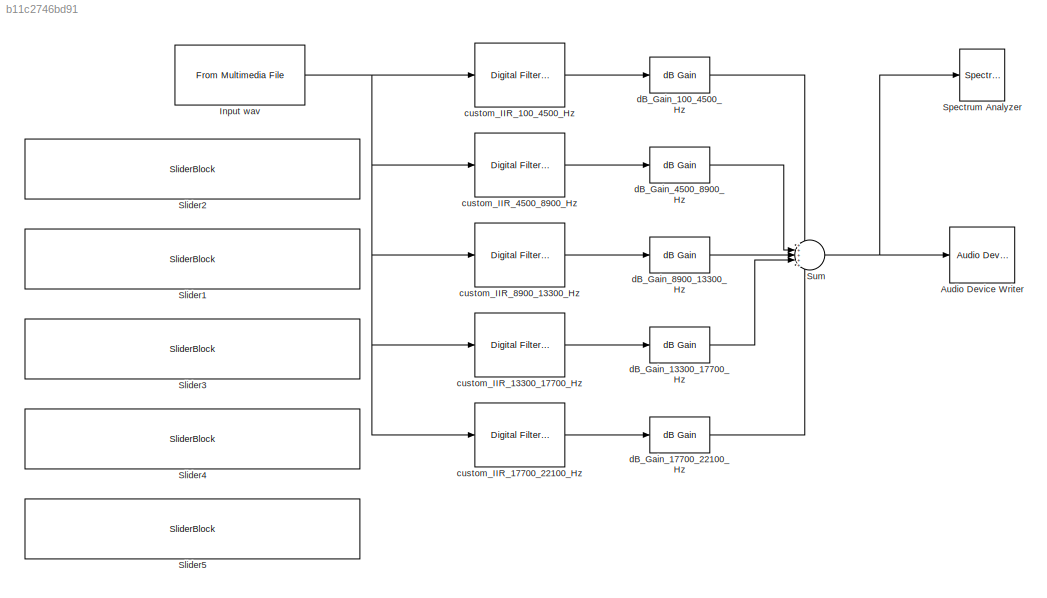
MODEL slx_b11c2746bd91
KIND model
CONFIG AbsTol = auto
CONFIG EnableMultiTasking = off
CONFIG FixedStep = auto
CONFIG MaxStep = auto
CONFIG MinStep = auto
CONFIG RelTol = 1e-3
CONFIG SampleTimeConstraint = Unconstrained
CONFIG Solver = VariableStepAuto
CONFIG SolverName = VariableStepAuto
CONFIG StartTime = 0.0
CONFIG StopTime = 10.0
BLOCK [Reference] Audio Device Writer  REF=dspsnks4/Audio Device
Writer
  Ports = [1]
  SourceBlock = dspsnks4/Audio Device\nWriter
  SourceProductBaseCode = DS
  SourceProductName = DSP System Toolbox
  SourceType = Audio Device Writer
BLOCK [Reference] Input wav  REF=dspvision/From Multimedia File
  Ports = [0, 1]
  SourceBlock = dspvision/From Multimedia File
  SourceProductBaseCode = DS
  SourceProductName = DSP System Toolbox
  SourceType = From Multimedia File
BLOCK [SliderBlock] Slider1
  ScaleMin = -100
BLOCK [SliderBlock] Slider2
  ScaleMin = -100
BLOCK [SliderBlock] Slider3
  ScaleMin = -100
BLOCK [SliderBlock] Slider4
  ScaleMin = -100
BLOCK [SliderBlock] Slider5
  ScaleMin = -100
BLOCK [SpectrumAnalyzer] Spectrum Analyzer
  Ports = [1]
  ScopeSpecificationString = spbscopes.SpectrumAnalyzerBlockCfg('CurrentConfiguration', extmgr.ConfigurationSet(extmgr.Configuration('Core','General UI',true),extmgr.Configuration('Core','Source UI',true),extmgr.Configuration('Sources','WiredSimulink',true),extmgr.Configuration('Visuals','Spectrum',true,'AxesProperties',struct('Color',{[0 0 0],[0 0 0]},'XColor',{[0.686274509803922 0.686274509803922 0.686274509803922],[0.68627...<+1953ch>
BLOCK [Sum] Sum
  IconShape = round
  InputSameDT = off
  Inputs = +++++
  OutDataTypeStr = Inherit: Inherit via internal rule
  Ports = [5, 1]
  SaturateOnIntegerOverflow = off
BLOCK [Reference] custom_IIR_100_4500_Hz  REF=dsparch4/Digital
Filter Design
  Ports = [1, 1]
  SourceBlock = dsparch4/Digital\nFilter Design
  SourceProductBaseCode = DS
  SourceProductName = DSP System Toolbox
  SourceType = Digital Filter Design
  UserDataPersistent = on
BLOCK [Reference] custom_IIR_13300_17700_Hz  REF=dsparch4/Digital
Filter Design
  Ports = [1, 1]
  SourceBlock = dsparch4/Digital\nFilter Design
  SourceProductBaseCode = DS
  SourceProductName = DSP System Toolbox
  SourceType = Digital Filter Design
  UserDataPersistent = on
BLOCK [Reference] custom_IIR_17700_22100_Hz  REF=dsparch4/Digital
Filter Design
  Ports = [1, 1]
  SourceBlock = dsparch4/Digital\nFilter Design
  SourceProductBaseCode = DS
  SourceProductName = DSP System Toolbox
  SourceType = Digital Filter Design
  UserDataPersistent = on
BLOCK [Reference] custom_IIR_4500_8900_Hz  REF=dsparch4/Digital
Filter Design
  Ports = [1, 1]
  SourceBlock = dsparch4/Digital\nFilter Design
  SourceProductBaseCode = DS
  SourceProductName = DSP System Toolbox
  SourceType = Digital Filter Design
  UserDataPersistent = on
BLOCK [Reference] custom_IIR_8900_13300_Hz  REF=dsparch4/Digital
Filter Design
  Ports = [1, 1]
  SourceBlock = dsparch4/Digital\nFilter Design
  SourceProductBaseCode = DS
  SourceProductName = DSP System Toolbox
  SourceType = Digital Filter Design
  UserDataPersistent = on
BLOCK [Reference] dB_Gain_100_4500_Hz  REF=dspmathops/dB Gain
  Ports = [1, 1]
  SourceBlock = dspmathops/dB Gain
  SourceProductBaseCode = DS
  SourceProductName = DSP System Toolbox
  SourceType = dB Gain
BLOCK [Reference] dB_Gain_13300_17700_Hz  REF=dspmathops/dB Gain
  Ports = [1, 1]
  SourceBlock = dspmathops/dB Gain
  SourceProductBaseCode = DS
  SourceProductName = DSP System Toolbox
  SourceType = dB Gain
BLOCK [Reference] dB_Gain_17700_22100_Hz  REF=dspmathops/dB Gain
  Ports = [1, 1]
  SourceBlock = dspmathops/dB Gain
  SourceProductBaseCode = DS
  SourceProductName = DSP System Toolbox
  SourceType = dB Gain
BLOCK [Reference] dB_Gain_4500_8900_Hz  REF=dspmathops/dB Gain
  Ports = [1, 1]
  SourceBlock = dspmathops/dB Gain
  SourceProductBaseCode = DS
  SourceProductName = DSP System Toolbox
  SourceType = dB Gain
BLOCK [Reference] dB_Gain_8900_13300_Hz  REF=dspmathops/dB Gain
  Ports = [1, 1]
  SourceBlock = dspmathops/dB Gain
  SourceProductBaseCode = DS
  SourceProductName = DSP System Toolbox
  SourceType = dB Gain
NET Input wav:1 -> custom_IIR_100_4500_Hz:1, custom_IIR_13300_17700_Hz:1, custom_IIR_17700_22100_Hz:1, custom_IIR_4500_8900_Hz:1, custom_IIR_8900_13300_Hz:1
NET Sum:1 -> Audio Device Writer:1, Spectrum Analyzer:1
LINE custom_IIR_100_4500_Hz:1 -> dB_Gain_100_4500_Hz:1
LINE custom_IIR_13300_17700_Hz:1 -> dB_Gain_13300_17700_Hz:1
LINE custom_IIR_17700_22100_Hz:1 -> dB_Gain_17700_22100_Hz:1
LINE custom_IIR_4500_8900_Hz:1 -> dB_Gain_4500_8900_Hz:1
LINE custom_IIR_8900_13300_Hz:1 -> dB_Gain_8900_13300_Hz:1
LINE dB_Gain_100_4500_Hz:1 -> Sum:1
LINE dB_Gain_13300_17700_Hz:1 -> Sum:4
LINE dB_Gain_17700_22100_Hz:1 -> Sum:5
LINE dB_Gain_4500_8900_Hz:1 -> Sum:2
LINE dB_Gain_8900_13300_Hz:1 -> Sum:3
note: NET lines group one-source signal fan-out (src -> all destinations, sorted); 1:1 wires keep LINE
